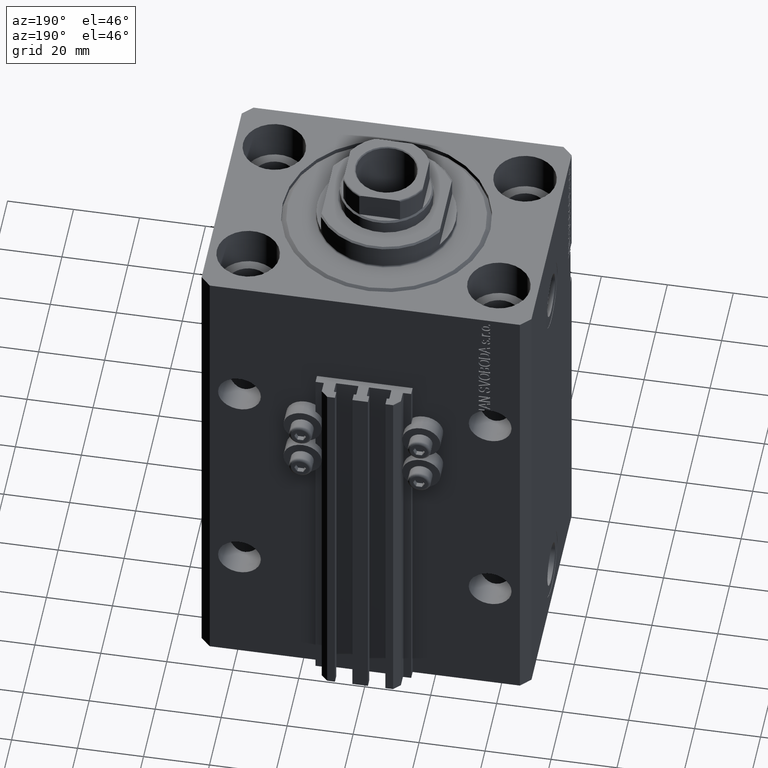
[diagram: clean part render]
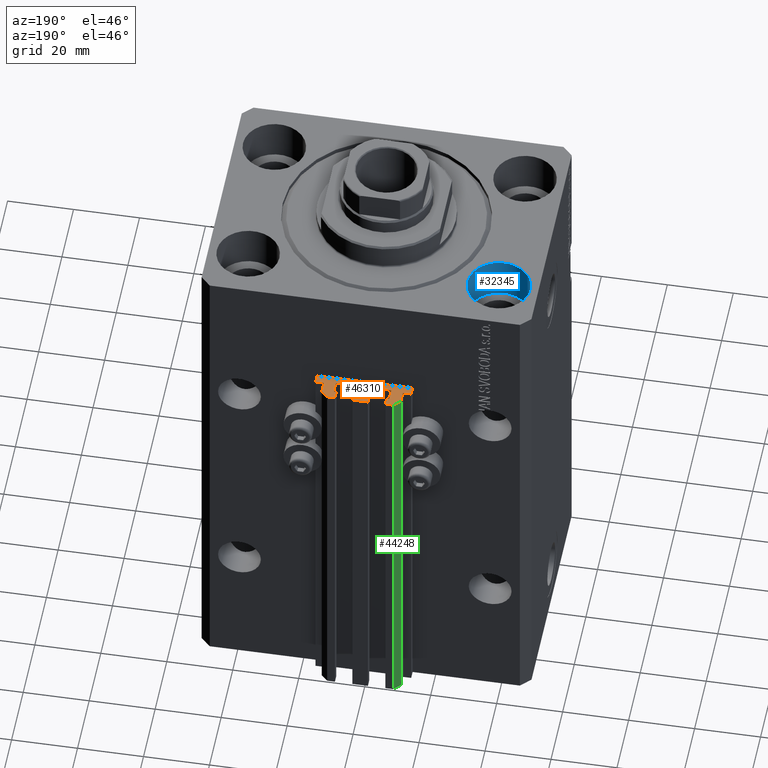
[diagram: same view with three faces highlighted in distinct colors, each labeled with its STEP entity id]
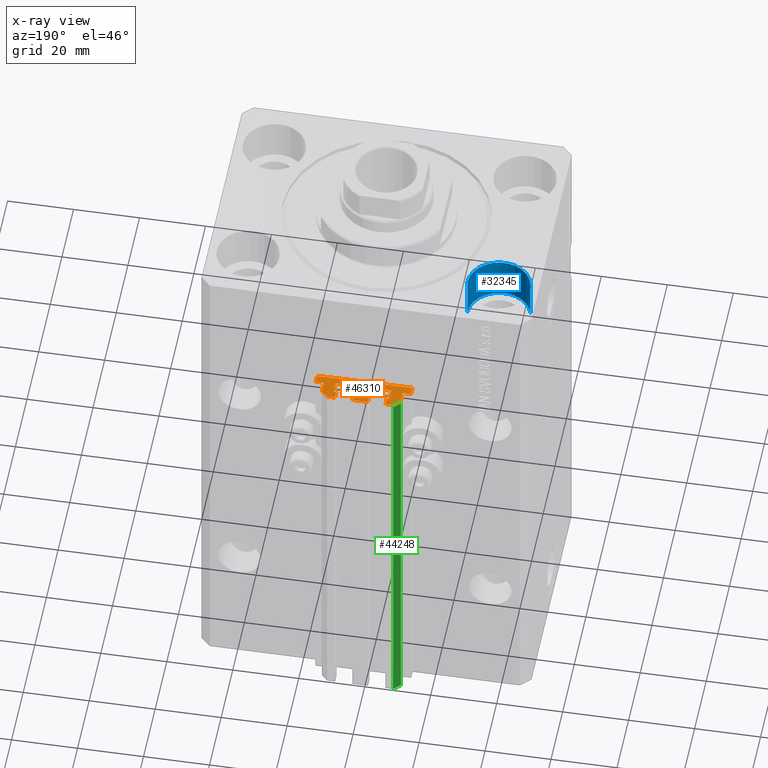
[diagram: x-ray of the same camera — body ghosted, the three highlighted faces saturated]
A machine part, auxiliary view with three faces highlighted in distinct colors.
The next image is the same camera in x-ray (body ghosted, the three faces saturated) — at least one of them is partly hidden behind the body in this view.
Their STEP definitions:

[orange] entity #46310 — the highlighted planar face has unit normal (0, 0, 1).
#24 = DIRECTION ( 'NONE',  ( 1.000000000000000000, 0.000000000000000000, 0.000000000000000000 ) ) ;
#56 = CARTESIAN_POINT ( 'NONE',  ( -14.50000000000000000, 39.99999999999999289, -33.00000000000000000 ) ) ;
#68 = ORIENTED_EDGE ( 'NONE', *, *, #24298, .T. ) ;
#148 = CARTESIAN_POINT ( 'NONE',  ( 12.00000000000000000, 43.50000000000002132, -33.00000000000000000 ) ) ;
#251 = CARTESIAN_POINT ( 'NONE',  ( 12.00000000000000000, 43.50000000000002132, -33.00000000000000000 ) ) ;
#435 = LINE ( 'NONE', #3359, #10320 ) ;
#467 = ORIENTED_EDGE ( 'NONE', *, *, #36859, .T. ) ;
#588 = VERTEX_POINT ( 'NONE', #3208 ) ;
#849 = CIRCLE ( 'NONE', #35069, 0.1999999999999998723 ) ;
#1845 = EDGE_CURVE ( 'NONE', #3474, #8685, #30923, .T. ) ;
#2583 = EDGE_CURVE ( 'NONE', #44900, #36249, #18470, .T. ) ;
#2861 = CARTESIAN_POINT ( 'NONE',  ( -2.350000000000003197, 43.10000000000000853, -33.00000000000000000 ) ) ;
#2949 = VECTOR ( 'NONE', #37934, 1000.000000000000000 ) ;
#3009 = ORIENTED_EDGE ( 'NONE', *, *, #37012, .F. ) ;
#3193 = CARTESIAN_POINT ( 'NONE',  ( -12.20000000000000107, 39.99999999999998579, -33.00000000000000000 ) ) ;
#3208 = CARTESIAN_POINT ( 'NONE',  ( -2.350000000000003642, 45.50000000000000711, -33.00000000000000000 ) ) ;
#3233 = AXIS2_PLACEMENT_3D ( 'NONE', #37066, #18297, #24 ) ;
#3250 = VERTEX_POINT ( 'NONE', #39840 ) ;
#3275 = EDGE_LOOP ( 'NONE', ( #42648, #44871, #467, #12449, #10863, #68, #22457, #19434, #16439, #35631, #9361, #19989, #10838, #9105, #27028, #10081, #17294, #44394, #33990, #3009, #17116, #31369, #5089, #15490, #27808, #46724, #31295, #3901, #4737, #5184, #45193, #43600, #7581, #20670, #13408, #35400 ) ) ;
#3359 = CARTESIAN_POINT ( 'NONE',  ( 14.49999999999999645, 40.00000000000002132, -33.00000000000000000 ) ) ;
#3417 = CARTESIAN_POINT ( 'NONE',  ( 8.400000000000000355, 42.90000000000001990, -33.00000000000000000 ) ) ;
#3474 = VERTEX_POINT ( 'NONE', #47010 ) ;
#3768 = VERTEX_POINT ( 'NONE', #5082 ) ;
#3850 = CIRCLE ( 'NONE', #21731, 0.1999999999999987899 ) ;
#3901 = ORIENTED_EDGE ( 'NONE', *, *, #16786, .T. ) ;
#3927 = DIRECTION ( 'NONE',  ( 0.000000000000000000, 1.000000000000000000, 0.000000000000000000 ) ) ;
#4011 = EDGE_CURVE ( 'NONE', #21726, #8282, #47764, .T. ) ;
#4041 = CARTESIAN_POINT ( 'NONE',  ( -7.650000000000002132, 45.49999999999999289, -33.00000000000000000 ) ) ;
#4066 = DIRECTION ( 'NONE',  ( 1.000000000000000000, 0.000000000000000000, 0.000000000000000000 ) ) ;
#4345 = CARTESIAN_POINT ( 'NONE',  ( -12.00000000000000000, 43.49999999999998579, -33.00000000000000000 ) ) ;
#4467 = CARTESIAN_POINT ( 'NONE',  ( 1.800000000000000933, 43.10000000000001563, -33.00000000000000000 ) ) ;
#4737 = ORIENTED_EDGE ( 'NONE', *, *, #25682, .F. ) ;
#5082 = CARTESIAN_POINT ( 'NONE',  ( -12.20000000000000107, 39.99999999999998579, -33.00000000000000000 ) ) ;
#5089 = ORIENTED_EDGE ( 'NONE', *, *, #47730, .F. ) ;
#5132 = DIRECTION ( 'NONE',  ( 0.000000000000000000, -1.000000000000000000, 0.000000000000000000 ) ) ;
#5184 = ORIENTED_EDGE ( 'NONE', *, *, #47688, .T. ) ;
#5371 = DIRECTION ( 'NONE',  ( 1.000000000000000000, 0.000000000000000000, 0.000000000000000000 ) ) ;
#5806 = VECTOR ( 'NONE', #12151, 1000.000000000000000 ) ;
#5907 = VERTEX_POINT ( 'NONE', #29199 ) ;
#5977 = CARTESIAN_POINT ( 'NONE',  ( -12.20000000000000107, 40.19999999999998863, -33.00000000000000000 ) ) ;
#6334 = VERTEX_POINT ( 'NONE', #9660 ) ;
#6397 = DIRECTION ( 'NONE',  ( 1.807003620809174632E-16, -1.000000000000000000, 0.000000000000000000 ) ) ;
#6408 = DIRECTION ( 'NONE',  ( 1.000000000000000000, 0.000000000000000000, 0.000000000000000000 ) ) ;
#6430 = VECTOR ( 'NONE', #43622, 1000.000000000000000 ) ;
#6604 = EDGE_CURVE ( 'NONE', #27602, #29760, #29734, .T. ) ;
#6610 = VERTEX_POINT ( 'NONE', #32914 ) ;
#6695 = DIRECTION ( 'NONE',  ( 1.000000000000000000, 0.000000000000000000, 0.000000000000000000 ) ) ;
#6862 = LINE ( 'NONE', #14192, #23971 ) ;
#7552 = DIRECTION ( 'NONE',  ( -0.7071067811865474617, 0.7071067811865474617, 0.000000000000000000 ) ) ;
#7581 = ORIENTED_EDGE ( 'NONE', *, *, #37332, .T. ) ;
#8242 = PLANE ( 'NONE',  #32868 ) ;
#8282 = VERTEX_POINT ( 'NONE', #15254 ) ;
#8296 = LINE ( 'NONE', #19514, #31867 ) ;
#8523 = VECTOR ( 'NONE', #24881, 1000.000000000000000 ) ;
#8533 = DIRECTION ( 'NONE',  ( 0.000000000000000000, 0.000000000000000000, 1.000000000000000000 ) ) ;
#8685 = VERTEX_POINT ( 'NONE', #40100 ) ;
#8699 = VERTEX_POINT ( 'NONE', #31827 ) ;
#8939 = VECTOR ( 'NONE', #5132, 1000.000000000000000 ) ;
#9047 = CARTESIAN_POINT ( 'NONE',  ( -8.199999999999997513, 42.89999999999999147, -33.00000000000000000 ) ) ;
#9076 = DIRECTION ( 'NONE',  ( 1.000000000000000000, -1.261617073437681085E-14, 0.000000000000000000 ) ) ;
#9105 = ORIENTED_EDGE ( 'NONE', *, *, #15396, .T. ) ;
#9299 = DIRECTION ( 'NONE',  ( -1.000000000000000000, 0.000000000000000000, 0.000000000000000000 ) ) ;
#9361 = ORIENTED_EDGE ( 'NONE', *, *, #11055, .F. ) ;
#9660 = CARTESIAN_POINT ( 'NONE',  ( -10.00000000000000000, 45.49999999999999289, -33.00000000000000000 ) ) ;
#10081 = ORIENTED_EDGE ( 'NONE', *, *, #27782, .T. ) ;
#10320 = VECTOR ( 'NONE', #26035, 1000.000000000000000 ) ;
#10838 = ORIENTED_EDGE ( 'NONE', *, *, #44119, .F. ) ;
#10863 = ORIENTED_EDGE ( 'NONE', *, *, #45041, .F. ) ;
#10961 = LINE ( 'NONE', #3417, #43580 ) ;
#10970 = CARTESIAN_POINT ( 'NONE',  ( 8.200000000000001066, 42.90000000000001990, -33.00000000000000000 ) ) ;
#11029 = VERTEX_POINT ( 'NONE', #28378 ) ;
#11055 = EDGE_CURVE ( 'NONE', #8699, #29137, #39978, .T. ) ;
#11660 = CARTESIAN_POINT ( 'NONE',  ( 12.20000000000000107, 40.20000000000002416, -33.00000000000000000 ) ) ;
#11718 = DIRECTION ( 'NONE',  ( 1.000000000000000000, 0.000000000000000000, 0.000000000000000000 ) ) ;
#11743 = EDGE_CURVE ( 'NONE', #23527, #17492, #40655, .T. ) ;
#11896 = DIRECTION ( 'NONE',  ( 1.000000000000000000, 0.000000000000000000, -0.000000000000000000 ) ) ;
#12014 = LINE ( 'NONE', #20050, #31492 ) ;
#12151 = DIRECTION ( 'NONE',  ( 1.000000000000000000, 2.392722035830078972E-16, 0.000000000000000000 ) ) ;
#12252 = DIRECTION ( 'NONE',  ( -1.084202172485506406E-15, 1.000000000000000000, 0.000000000000000000 ) ) ;
#12449 = ORIENTED_EDGE ( 'NONE', *, *, #48042, .T. ) ;
#12555 = AXIS2_PLACEMENT_3D ( 'NONE', #25100, #20721, #5371 ) ;
#12712 = CARTESIAN_POINT ( 'NONE',  ( -1.800000000000000933, 39.50000000000000000, -33.00000000000000000 ) ) ;
#13408 = ORIENTED_EDGE ( 'NONE', *, *, #33038, .F. ) ;
#13416 = LINE ( 'NONE', #35843, #8523 ) ;
#13547 = AXIS2_PLACEMENT_3D ( 'NONE', #45475, #19160, #26727 ) ;
#13551 = DIRECTION ( 'NONE',  ( 0.000000000000000000, 1.000000000000000000, 0.000000000000000000 ) ) ;
#13594 = VERTEX_POINT ( 'NONE', #39667 ) ;
#13670 = DIRECTION ( 'NONE',  ( 0.000000000000000000, 0.000000000000000000, 1.000000000000000000 ) ) ;
#13976 = EDGE_CURVE ( 'NONE', #3768, #13594, #17334, .T. ) ;
#14192 = CARTESIAN_POINT ( 'NONE',  ( -2.350000000000003642, 45.50000000000000711, -33.00000000000000000 ) ) ;
#14766 = VERTEX_POINT ( 'NONE', #33104 ) ;
#14776 = CARTESIAN_POINT ( 'NONE',  ( -1.600000000000000533, 42.90000000000000568, -33.00000000000000000 ) ) ;
#14851 = CARTESIAN_POINT ( 'NONE',  ( -10.00000000000000000, 45.49999999999999289, -33.00000000000000000 ) ) ;
#15254 = CARTESIAN_POINT ( 'NONE',  ( -1.600000000000000755, 39.69999999999999574, -33.00000000000000000 ) ) ;
#15396 = EDGE_CURVE ( 'NONE', #45010, #21693, #34727, .T. ) ;
#15490 = ORIENTED_EDGE ( 'NONE', *, *, #28673, .T. ) ;
#15974 = CARTESIAN_POINT ( 'NONE',  ( 8.199999999999999289, 39.50000000000000711, -33.00000000000000000 ) ) ;
#16439 = ORIENTED_EDGE ( 'NONE', *, *, #17100, .T. ) ;
#16734 = LINE ( 'NONE', #46685, #26946 ) ;
#16786 = EDGE_CURVE ( 'NONE', #22753, #25602, #12014, .T. ) ;
#16876 = EDGE_CURVE ( 'NONE', #18826, #3250, #34619, .T. ) ;
#17100 = EDGE_CURVE ( 'NONE', #5907, #14766, #38523, .T. ) ;
#17116 = ORIENTED_EDGE ( 'NONE', *, *, #24494, .T. ) ;
#17135 = CIRCLE ( 'NONE', #43598, 0.2000000000000005107 ) ;
#17294 = ORIENTED_EDGE ( 'NONE', *, *, #16876, .F. ) ;
#17319 = CARTESIAN_POINT ( 'NONE',  ( -8.199999999999999289, 43.09999999999999432, -33.00000000000000000 ) ) ;
#17334 = LINE ( 'NONE', #3193, #39289 ) ;
#17344 = DIRECTION ( 'NONE',  ( 1.000000000000000000, 0.000000000000000000, 0.000000000000000000 ) ) ;
#17424 = DIRECTION ( 'NONE',  ( 0.000000000000000000, 0.000000000000000000, 1.000000000000000000 ) ) ;
#17492 = VERTEX_POINT ( 'NONE', #41705 ) ;
#17588 = DIRECTION ( 'NONE',  ( 0.000000000000000000, 0.000000000000000000, 1.000000000000000000 ) ) ;
#17615 = LINE ( 'NONE', #32003, #28786 ) ;
#17710 = DIRECTION ( 'NONE',  ( 1.000000000000000000, 1.261617073437673039E-14, 0.000000000000000000 ) ) ;
#17770 = VERTEX_POINT ( 'NONE', #33860 ) ;
#18297 = DIRECTION ( 'NONE',  ( 0.000000000000000000, 0.000000000000000000, 1.000000000000000000 ) ) ;
#18470 = LINE ( 'NONE', #29693, #40751 ) ;
#18826 = VERTEX_POINT ( 'NONE', #31597 ) ;
#18896 = DIRECTION ( 'NONE',  ( -1.000000000000000000, 0.000000000000000000, 0.000000000000000000 ) ) ;
#18988 = DIRECTION ( 'NONE',  ( -0.7071067811865460184, -0.7071067811865490160, 0.000000000000000000 ) ) ;
#19019 = VERTEX_POINT ( 'NONE', #32782 ) ;
#19160 = DIRECTION ( 'NONE',  ( 0.000000000000000000, 0.000000000000000000, 1.000000000000000000 ) ) ;
#19434 = ORIENTED_EDGE ( 'NONE', *, *, #37300, .T. ) ;
#19514 = CARTESIAN_POINT ( 'NONE',  ( 1.600000000000000533, 39.69999999999999574, -33.00000000000000000 ) ) ;
#19963 = EDGE_CURVE ( 'NONE', #25789, #45536, #16734, .T. ) ;
#19989 = ORIENTED_EDGE ( 'NONE', *, *, #38239, .T. ) ;
#20050 = CARTESIAN_POINT ( 'NONE',  ( -8.399999999999996803, 39.69999999999999574, -33.00000000000000000 ) ) ;
#20533 = VECTOR ( 'NONE', #37002, 1000.000000000000000 ) ;
#20670 = ORIENTED_EDGE ( 'NONE', *, *, #11743, .T. ) ;
#20721 = DIRECTION ( 'NONE',  ( 0.000000000000000000, 0.000000000000000000, 1.000000000000000000 ) ) ;
#20987 = CARTESIAN_POINT ( 'NONE',  ( -1.800000000000000933, 42.90000000000000568, -33.00000000000000000 ) ) ;
#21360 = AXIS2_PLACEMENT_3D ( 'NONE', #42930, #17588, #17344 ) ;
#21624 = CARTESIAN_POINT ( 'NONE',  ( -1.800000000000000933, 43.10000000000001563, -33.00000000000000000 ) ) ;
#21693 = VERTEX_POINT ( 'NONE', #22619 ) ;
#21726 = VERTEX_POINT ( 'NONE', #29442 ) ;
#21731 = AXIS2_PLACEMENT_3D ( 'NONE', #45096, #8533, #11718 ) ;
#22307 = CARTESIAN_POINT ( 'NONE',  ( 2.349999999999999645, 45.50000000000000711, -33.00000000000000000 ) ) ;
#22457 = ORIENTED_EDGE ( 'NONE', *, *, #6604, .T. ) ;
#22619 = CARTESIAN_POINT ( 'NONE',  ( 1.800000000000000933, 39.50000000000000000, -33.00000000000000000 ) ) ;
#22668 = DIRECTION ( 'NONE',  ( -5.421010862427508365E-16, -1.000000000000000000, 0.000000000000000000 ) ) ;
#22698 = CARTESIAN_POINT ( 'NONE',  ( 1.600000000000001421, 39.69999999999999574, -33.00000000000000000 ) ) ;
#22753 = VERTEX_POINT ( 'NONE', #27013 ) ;
#23358 = FACE_OUTER_BOUND ( 'NONE', #3275, .T. ) ;
#23527 = VERTEX_POINT ( 'NONE', #32226 ) ;
#23559 = CIRCLE ( 'NONE', #29775, 0.2000000000000031197 ) ;
#23712 = LINE ( 'NONE', #4467, #35975 ) ;
#23892 = VERTEX_POINT ( 'NONE', #21624 ) ;
#23894 = CARTESIAN_POINT ( 'NONE',  ( 7.649999999999998579, 45.50000000000002842, -33.00000000000000000 ) ) ;
#23919 = DIRECTION ( 'NONE',  ( 0.000000000000000000, 0.000000000000000000, 1.000000000000000000 ) ) ;
#23971 = VECTOR ( 'NONE', #6397, 1000.000000000000000 ) ;
#24298 = EDGE_CURVE ( 'NONE', #38533, #27602, #45418, .T. ) ;
#24312 = CARTESIAN_POINT ( 'NONE',  ( -7.650000000000002132, 45.49999999999999289, -33.00000000000000000 ) ) ;
#24494 = EDGE_CURVE ( 'NONE', #588, #37374, #6862, .T. ) ;
#24881 = DIRECTION ( 'NONE',  ( -1.000000000000000000, 0.000000000000000000, 0.000000000000000000 ) ) ;
#25010 = LINE ( 'NONE', #40115, #35239 ) ;
#25100 = CARTESIAN_POINT ( 'NONE',  ( 8.199999999999999289, 39.70000000000000284, -33.00000000000000000 ) ) ;
#25498 = EDGE_CURVE ( 'NONE', #13594, #3474, #33442, .T. ) ;
#25602 = VERTEX_POINT ( 'NONE', #38550 ) ;
#25646 = VECTOR ( 'NONE', #18988, 1000.000000000000227 ) ;
#25682 = EDGE_CURVE ( 'NONE', #6610, #25602, #47362, .T. ) ;
#25789 = VERTEX_POINT ( 'NONE', #32183 ) ;
#26035 = DIRECTION ( 'NONE',  ( -1.000000000000000000, 0.000000000000000000, 0.000000000000000000 ) ) ;
#26190 = CARTESIAN_POINT ( 'NONE',  ( 12.00000000000000178, 40.20000000000002416, -33.00000000000000000 ) ) ;
#26542 = DIRECTION ( 'NONE',  ( 0.000000000000000000, 0.000000000000000000, 1.000000000000000000 ) ) ;
#26727 = DIRECTION ( 'NONE',  ( 1.000000000000000000, 0.000000000000000000, 0.000000000000000000 ) ) ;
#26946 = VECTOR ( 'NONE', #13551, 1000.000000000000000 ) ;
#27013 = CARTESIAN_POINT ( 'NONE',  ( -8.399999999999996803, 39.69999999999999574, -33.00000000000000000 ) ) ;
#27028 = ORIENTED_EDGE ( 'NONE', *, *, #39295, .F. ) ;
#27220 = CARTESIAN_POINT ( 'NONE',  ( 9.999999999999998224, 45.50000000000002842, -33.00000000000000000 ) ) ;
#27602 = VERTEX_POINT ( 'NONE', #148 ) ;
#27616 = EDGE_CURVE ( 'NONE', #45536, #6334, #37432, .T. ) ;
#27641 = DIRECTION ( 'NONE',  ( 0.000000000000000000, 1.000000000000000000, 0.000000000000000000 ) ) ;
#27782 = EDGE_CURVE ( 'NONE', #31573, #3250, #8296, .T. ) ;
#27808 = ORIENTED_EDGE ( 'NONE', *, *, #4011, .F. ) ;
#28120 = CIRCLE ( 'NONE', #3233, 0.2000000000000022593 ) ;
#28378 = CARTESIAN_POINT ( 'NONE',  ( -1.599999999999997868, 42.90000000000000568, -33.00000000000000000 ) ) ;
#28617 = DIRECTION ( 'NONE',  ( 1.000000000000000000, 0.000000000000000000, 0.000000000000000000 ) ) ;
#28673 = EDGE_CURVE ( 'NONE', #11029, #8282, #33303, .T. ) ;
#28708 = AXIS2_PLACEMENT_3D ( 'NONE', #9047, #23919, #38785 ) ;
#28786 = VECTOR ( 'NONE', #6408, 1000.000000000000000 ) ;
#29047 = EDGE_CURVE ( 'NONE', #14766, #29137, #25010, .T. ) ;
#29137 = VERTEX_POINT ( 'NONE', #35109 ) ;
#29199 = CARTESIAN_POINT ( 'NONE',  ( 7.649999999999998579, 45.50000000000002842, -33.00000000000000000 ) ) ;
#29442 = CARTESIAN_POINT ( 'NONE',  ( -1.800000000000000933, 39.50000000000000000, -33.00000000000000000 ) ) ;
#29693 = CARTESIAN_POINT ( 'NONE',  ( 2.349999999999999645, 43.10000000000000853, -33.00000000000000000 ) ) ;
#29734 = LINE ( 'NONE', #251, #43174 ) ;
#29760 = VERTEX_POINT ( 'NONE', #27220 ) ;
#29775 = AXIS2_PLACEMENT_3D ( 'NONE', #20987, #13670, #43859 ) ;
#29785 = DIRECTION ( 'NONE',  ( 0.000000000000000000, -1.000000000000000000, 0.000000000000000000 ) ) ;
#29894 = VERTEX_POINT ( 'NONE', #39855 ) ;
#30693 = VECTOR ( 'NONE', #31555, 1000.000000000000000 ) ;
#30923 = LINE ( 'NONE', #42123, #5806 ) ;
#31295 = ORIENTED_EDGE ( 'NONE', *, *, #31506, .F. ) ;
#31369 = ORIENTED_EDGE ( 'NONE', *, *, #46476, .T. ) ;
#31492 = VECTOR ( 'NONE', #12252, 1000.000000000000000 ) ;
#31506 = EDGE_CURVE ( 'NONE', #22753, #19019, #3850, .T. ) ;
#31555 = DIRECTION ( 'NONE',  ( -1.000000000000000000, -1.084202172485504828E-15, 0.000000000000000000 ) ) ;
#31573 = VERTEX_POINT ( 'NONE', #22698 ) ;
#31597 = CARTESIAN_POINT ( 'NONE',  ( 1.800000000000000933, 43.10000000000001563, -33.00000000000000000 ) ) ;
#31730 = VECTOR ( 'NONE', #37638, 1000.000000000000000 ) ;
#31767 = CARTESIAN_POINT ( 'NONE',  ( 14.49999999999999645, 37.50000000000000711, -33.00000000000000000 ) ) ;
#31827 = CARTESIAN_POINT ( 'NONE',  ( 8.400000000000003908, 42.90000000000001990, -33.00000000000000000 ) ) ;
#31867 = VECTOR ( 'NONE', #3927, 1000.000000000000000 ) ;
#32003 = CARTESIAN_POINT ( 'NONE',  ( -2.350000000000003642, 45.50000000000000711, -33.00000000000000000 ) ) ;
#32183 = CARTESIAN_POINT ( 'NONE',  ( -7.650000000000002132, 43.09999999999999432, -33.00000000000000000 ) ) ;
#32226 = CARTESIAN_POINT ( 'NONE',  ( -12.00000000000000000, 43.49999999999998579, -33.00000000000000000 ) ) ;
#32556 = VECTOR ( 'NONE', #29785, 1000.000000000000000 ) ;
#32782 = CARTESIAN_POINT ( 'NONE',  ( -8.199999999999997513, 39.50000000000000000, -33.00000000000000000 ) ) ;
#32868 = AXIS2_PLACEMENT_3D ( 'NONE', #11660, #26542, #11896 ) ;
#32914 = CARTESIAN_POINT ( 'NONE',  ( -8.199999999999999289, 43.09999999999999432, -33.00000000000000000 ) ) ;
#33038 = EDGE_CURVE ( 'NONE', #3768, #17492, #17135, .T. ) ;
#33104 = CARTESIAN_POINT ( 'NONE',  ( 7.649999999999998579, 43.10000000000002984, -33.00000000000000000 ) ) ;
#33144 = LINE ( 'NONE', #14851, #25646 ) ;
#33303 = LINE ( 'NONE', #14776, #2949 ) ;
#33442 = LINE ( 'NONE', #56, #32556 ) ;
#33860 = CARTESIAN_POINT ( 'NONE',  ( 8.400000000000000355, 39.70000000000000995, -33.00000000000000000 ) ) ;
#33869 = CARTESIAN_POINT ( 'NONE',  ( -2.350000000000003197, 43.10000000000000853, -33.00000000000000000 ) ) ;
#33990 = ORIENTED_EDGE ( 'NONE', *, *, #2583, .T. ) ;
#34408 = VECTOR ( 'NONE', #17710, 1000.000000000000000 ) ;
#34619 = CIRCLE ( 'NONE', #21360, 0.2000000000000033418 ) ;
#34727 = LINE ( 'NONE', #15974, #30693 ) ;
#35004 = VECTOR ( 'NONE', #27641, 1000.000000000000000 ) ;
#35069 = AXIS2_PLACEMENT_3D ( 'NONE', #37458, #44754, #4066 ) ;
#35109 = CARTESIAN_POINT ( 'NONE',  ( 8.200000000000001066, 43.10000000000002984, -33.00000000000000000 ) ) ;
#35239 = VECTOR ( 'NONE', #35976, 1000.000000000000000 ) ;
#35400 = ORIENTED_EDGE ( 'NONE', *, *, #13976, .T. ) ;
#35631 = ORIENTED_EDGE ( 'NONE', *, *, #29047, .T. ) ;
#35843 = CARTESIAN_POINT ( 'NONE',  ( 9.999999999999998224, 45.50000000000002842, -33.00000000000000000 ) ) ;
#35975 = VECTOR ( 'NONE', #9076, 1000.000000000000000 ) ;
#35976 = DIRECTION ( 'NONE',  ( 1.000000000000000000, 0.000000000000000000, 0.000000000000000000 ) ) ;
#36249 = VERTEX_POINT ( 'NONE', #22307 ) ;
#36859 = EDGE_CURVE ( 'NONE', #8685, #29894, #42725, .T. ) ;
#36958 = LINE ( 'NONE', #2861, #34408 ) ;
#37002 = DIRECTION ( 'NONE',  ( 0.000000000000000000, -1.000000000000000000, 0.000000000000000000 ) ) ;
#37012 = EDGE_CURVE ( 'NONE', #588, #36249, #17615, .T. ) ;
#37066 = CARTESIAN_POINT ( 'NONE',  ( 12.20000000000000107, 40.20000000000002416, -33.00000000000000000 ) ) ;
#37300 = EDGE_CURVE ( 'NONE', #29760, #5907, #13416, .T. ) ;
#37332 = EDGE_CURVE ( 'NONE', #6334, #23527, #33144, .T. ) ;
#37374 = VERTEX_POINT ( 'NONE', #33869 ) ;
#37432 = LINE ( 'NONE', #4041, #45062 ) ;
#37458 = CARTESIAN_POINT ( 'NONE',  ( 1.800000000000000933, 39.69999999999999574, -33.00000000000000000 ) ) ;
#37638 = DIRECTION ( 'NONE',  ( -5.256737805990328981E-16, 1.000000000000000000, 0.000000000000000000 ) ) ;
#37934 = DIRECTION ( 'NONE',  ( -6.776263578034385456E-17, -1.000000000000000000, 0.000000000000000000 ) ) ;
#38017 = EDGE_CURVE ( 'NONE', #21726, #19019, #45619, .T. ) ;
#38239 = EDGE_CURVE ( 'NONE', #8699, #17770, #10961, .T. ) ;
#38523 = LINE ( 'NONE', #23894, #8939 ) ;
#38533 = VERTEX_POINT ( 'NONE', #44271 ) ;
#38550 = CARTESIAN_POINT ( 'NONE',  ( -8.400000000000000355, 42.89999999999999147, -33.00000000000000000 ) ) ;
#38785 = DIRECTION ( 'NONE',  ( 1.000000000000000000, 0.000000000000000000, 0.000000000000000000 ) ) ;
#38945 = VECTOR ( 'NONE', #9299, 1000.000000000000000 ) ;
#39221 = AXIS2_PLACEMENT_3D ( 'NONE', #10970, #41429, #28617 ) ;
#39289 = VECTOR ( 'NONE', #44106, 1000.000000000000000 ) ;
#39295 = EDGE_CURVE ( 'NONE', #31573, #21693, #849, .T. ) ;
#39667 = CARTESIAN_POINT ( 'NONE',  ( -14.50000000000000000, 39.99999999999999289, -33.00000000000000000 ) ) ;
#39773 = CARTESIAN_POINT ( 'NONE',  ( 2.349999999999999645, 43.10000000000000853, -33.00000000000000000 ) ) ;
#39840 = CARTESIAN_POINT ( 'NONE',  ( 1.600000000000000533, 42.90000000000000568, -33.00000000000000000 ) ) ;
#39855 = CARTESIAN_POINT ( 'NONE',  ( 14.49999999999999645, 40.00000000000002132, -33.00000000000000000 ) ) ;
#39978 = CIRCLE ( 'NONE', #39221, 0.2000000000000040079 ) ;
#40100 = CARTESIAN_POINT ( 'NONE',  ( 14.49999999999999645, 37.50000000000000711, -33.00000000000000000 ) ) ;
#40115 = CARTESIAN_POINT ( 'NONE',  ( 7.649999999999998579, 43.10000000000002984, -33.00000000000000000 ) ) ;
#40655 = LINE ( 'NONE', #4345, #20533 ) ;
#40751 = VECTOR ( 'NONE', #44537, 1000.000000000000000 ) ;
#41429 = DIRECTION ( 'NONE',  ( 0.000000000000000000, 0.000000000000000000, 1.000000000000000000 ) ) ;
#41705 = CARTESIAN_POINT ( 'NONE',  ( -12.00000000000000000, 40.19999999999998863, -33.00000000000000000 ) ) ;
#42123 = CARTESIAN_POINT ( 'NONE',  ( -14.50000000000000000, 37.50000000000000000, -33.00000000000000000 ) ) ;
#42648 = ORIENTED_EDGE ( 'NONE', *, *, #25498, .T. ) ;
#42725 = LINE ( 'NONE', #31767, #35004 ) ;
#42930 = CARTESIAN_POINT ( 'NONE',  ( 1.800000000000000933, 42.90000000000000568, -33.00000000000000000 ) ) ;
#43033 = EDGE_CURVE ( 'NONE', #18826, #44900, #23712, .T. ) ;
#43147 = LINE ( 'NONE', #17319, #6430 ) ;
#43174 = VECTOR ( 'NONE', #7552, 1000.000000000000114 ) ;
#43580 = VECTOR ( 'NONE', #22668, 1000.000000000000000 ) ;
#43598 = AXIS2_PLACEMENT_3D ( 'NONE', #5977, #17424, #6695 ) ;
#43600 = ORIENTED_EDGE ( 'NONE', *, *, #27616, .T. ) ;
#43622 = DIRECTION ( 'NONE',  ( 1.000000000000000000, 0.000000000000000000, 0.000000000000000000 ) ) ;
#43859 = DIRECTION ( 'NONE',  ( 1.000000000000000000, 0.000000000000000000, 0.000000000000000000 ) ) ;
#44106 = DIRECTION ( 'NONE',  ( -1.000000000000000000, 3.016910393003142859E-15, 0.000000000000000000 ) ) ;
#44119 = EDGE_CURVE ( 'NONE', #45010, #17770, #46775, .T. ) ;
#44271 = CARTESIAN_POINT ( 'NONE',  ( 11.99999999999999822, 40.20000000000002416, -33.00000000000000000 ) ) ;
#44394 = ORIENTED_EDGE ( 'NONE', *, *, #43033, .T. ) ;
#44537 = DIRECTION ( 'NONE',  ( 0.000000000000000000, 1.000000000000000000, 0.000000000000000000 ) ) ;
#44754 = DIRECTION ( 'NONE',  ( 0.000000000000000000, 0.000000000000000000, 1.000000000000000000 ) ) ;
#44871 = ORIENTED_EDGE ( 'NONE', *, *, #1845, .T. ) ;
#44900 = VERTEX_POINT ( 'NONE', #39773 ) ;
#45010 = VERTEX_POINT ( 'NONE', #47780 ) ;
#45041 = EDGE_CURVE ( 'NONE', #38533, #47591, #28120, .T. ) ;
#45062 = VECTOR ( 'NONE', #18896, 1000.000000000000000 ) ;
#45096 = CARTESIAN_POINT ( 'NONE',  ( -8.199999999999997513, 39.69999999999999574, -33.00000000000000000 ) ) ;
#45193 = ORIENTED_EDGE ( 'NONE', *, *, #19963, .T. ) ;
#45418 = LINE ( 'NONE', #26190, #31730 ) ;
#45437 = CARTESIAN_POINT ( 'NONE',  ( 12.20000000000000107, 40.00000000000002132, -33.00000000000000000 ) ) ;
#45475 = CARTESIAN_POINT ( 'NONE',  ( -1.800000000000000933, 39.69999999999999574, -33.00000000000000000 ) ) ;
#45536 = VERTEX_POINT ( 'NONE', #24312 ) ;
#45619 = LINE ( 'NONE', #12712, #38945 ) ;
#46310 = ADVANCED_FACE ( 'NONE', ( #23358 ), #8242, .T. ) ;
#46476 = EDGE_CURVE ( 'NONE', #37374, #23892, #36958, .T. ) ;
#46685 = CARTESIAN_POINT ( 'NONE',  ( -7.650000000000002132, 43.09999999999999432, -33.00000000000000000 ) ) ;
#46724 = ORIENTED_EDGE ( 'NONE', *, *, #38017, .T. ) ;
#46775 = CIRCLE ( 'NONE', #12555, 0.1999999999999987899 ) ;
#47010 = CARTESIAN_POINT ( 'NONE',  ( -14.50000000000000000, 37.50000000000000000, -33.00000000000000000 ) ) ;
#47362 = CIRCLE ( 'NONE', #28708, 0.2000000000000005107 ) ;
#47591 = VERTEX_POINT ( 'NONE', #45437 ) ;
#47688 = EDGE_CURVE ( 'NONE', #6610, #25789, #43147, .T. ) ;
#47730 = EDGE_CURVE ( 'NONE', #11029, #23892, #23559, .T. ) ;
#47764 = CIRCLE ( 'NONE', #13547, 0.1999999999999994282 ) ;
#47780 = CARTESIAN_POINT ( 'NONE',  ( 8.199999999999999289, 39.50000000000000711, -33.00000000000000000 ) ) ;
#48042 = EDGE_CURVE ( 'NONE', #29894, #47591, #435, .T. ) ;

[blue] entity #32345 — the highlighted cylindrical surface (edge-blend (fillet) strip) has radius 9.5 mm, axis along (0, 0, 1).
#1449 = VERTEX_POINT ( 'NONE', #26134 ) ;
#3087 = AXIS2_PLACEMENT_3D ( 'NONE', #7403, #41279, #22031 ) ;
#6178 = CIRCLE ( 'NONE', #46628, 9.500000000000001776 ) ;
#6487 = CARTESIAN_POINT ( 'NONE',  ( -28.50000000000000355, 22.50000000000000000, -13.00000000000000000 ) ) ;
#7181 = VECTOR ( 'NONE', #37026, 1000.000000000000000 ) ;
#7403 = CARTESIAN_POINT ( 'NONE',  ( -38.00000000000000711, 22.50000000000000000, -13.00000000000000000 ) ) ;
#7930 = DIRECTION ( 'NONE',  ( 0.000000000000000000, 0.000000000000000000, 1.000000000000000000 ) ) ;
#8960 = ORIENTED_EDGE ( 'NONE', *, *, #31185, .F. ) ;
#9478 = ORIENTED_EDGE ( 'NONE', *, *, #47276, .F. ) ;
#9973 = LINE ( 'NONE', #16571, #21948 ) ;
#15148 = VERTEX_POINT ( 'NONE', #6487 ) ;
#15571 = LINE ( 'NONE', #22402, #7181 ) ;
#16571 = CARTESIAN_POINT ( 'NONE',  ( -47.50000000000000711, 22.50000000000000000, -13.00000000000000000 ) ) ;
#16756 = EDGE_CURVE ( 'NONE', #17144, #1449, #28405, .T. ) ;
#17144 = VERTEX_POINT ( 'NONE', #34852 ) ;
#20633 = ORIENTED_EDGE ( 'NONE', *, *, #45246, .T. ) ;
#21529 = VERTEX_POINT ( 'NONE', #44338 ) ;
#21845 = CARTESIAN_POINT ( 'NONE',  ( -38.00000000000000711, 22.50000000000000000, -13.00000000000000000 ) ) ;
#21948 = VECTOR ( 'NONE', #35573, 1000.000000000000000 ) ;
#22031 = DIRECTION ( 'NONE',  ( 1.000000000000000000, 0.000000000000000000, 0.000000000000000000 ) ) ;
#22402 = CARTESIAN_POINT ( 'NONE',  ( -28.50000000000000355, 22.50000000000000000, -13.00000000000000000 ) ) ;
#26134 = CARTESIAN_POINT ( 'NONE',  ( -28.50000000000000355, 22.50000000000000000, 0.000000000000000000 ) ) ;
#28060 = EDGE_LOOP ( 'NONE', ( #8960, #20633, #39182, #9478 ) ) ;
#28405 = CIRCLE ( 'NONE', #43160, 9.500000000000001776 ) ;
#29878 = DIRECTION ( 'NONE',  ( 1.000000000000000000, 0.000000000000000000, 0.000000000000000000 ) ) ;
#31185 = EDGE_CURVE ( 'NONE', #21529, #15148, #6178, .T. ) ;
#32345 = ADVANCED_FACE ( 'NONE', ( #44674 ), #37385, .F. ) ;
#34852 = CARTESIAN_POINT ( 'NONE',  ( -47.50000000000000711, 22.50000000000000000, 0.000000000000000000 ) ) ;
#35399 = DIRECTION ( 'NONE',  ( 0.000000000000000000, 0.000000000000000000, 1.000000000000000000 ) ) ;
#35573 = DIRECTION ( 'NONE',  ( -0.000000000000000000, -0.000000000000000000, 1.000000000000000000 ) ) ;
#37026 = DIRECTION ( 'NONE',  ( -0.000000000000000000, -0.000000000000000000, 1.000000000000000000 ) ) ;
#37385 = CYLINDRICAL_SURFACE ( 'NONE', #3087, 9.500000000000001776 ) ;
#39182 = ORIENTED_EDGE ( 'NONE', *, *, #16756, .T. ) ;
#41279 = DIRECTION ( 'NONE',  ( -0.000000000000000000, -0.000000000000000000, 1.000000000000000000 ) ) ;
#41748 = CARTESIAN_POINT ( 'NONE',  ( -38.00000000000000711, 22.50000000000000000, 0.000000000000000000 ) ) ;
#43160 = AXIS2_PLACEMENT_3D ( 'NONE', #41748, #35399, #46359 ) ;
#44338 = CARTESIAN_POINT ( 'NONE',  ( -47.50000000000000711, 22.50000000000000000, -13.00000000000000000 ) ) ;
#44674 = FACE_OUTER_BOUND ( 'NONE', #28060, .T. ) ;
#45246 = EDGE_CURVE ( 'NONE', #21529, #17144, #9973, .T. ) ;
#46359 = DIRECTION ( 'NONE',  ( 1.000000000000000000, 0.000000000000000000, 0.000000000000000000 ) ) ;
#46628 = AXIS2_PLACEMENT_3D ( 'NONE', #21845, #7930, #29878 ) ;
#47276 = EDGE_CURVE ( 'NONE', #15148, #1449, #15571, .T. ) ;

[green] entity #44248 — the highlighted planar face has unit normal (-0.7071, 0.7071, 0).
#765 = EDGE_CURVE ( 'NONE', #7929, #23527, #47440, .T. ) ;
#948 = CARTESIAN_POINT ( 'NONE',  ( -10.00000000000000000, 45.49999999999999289, -155.0000000000000000 ) ) ;
#1675 = AXIS2_PLACEMENT_3D ( 'NONE', #948, #19214, #41635 ) ;
#5000 = ORIENTED_EDGE ( 'NONE', *, *, #37332, .F. ) ;
#5193 = LINE ( 'NONE', #34915, #42098 ) ;
#6334 = VERTEX_POINT ( 'NONE', #9660 ) ;
#7929 = VERTEX_POINT ( 'NONE', #12366 ) ;
#9593 = EDGE_LOOP ( 'NONE', ( #5000, #22468, #14468, #21433 ) ) ;
#9660 = CARTESIAN_POINT ( 'NONE',  ( -10.00000000000000000, 45.49999999999999289, -33.00000000000000000 ) ) ;
#10877 = CARTESIAN_POINT ( 'NONE',  ( -12.00000000000000000, 43.49999999999998579, -155.0000000000000000 ) ) ;
#12366 = CARTESIAN_POINT ( 'NONE',  ( -12.00000000000000000, 43.49999999999998579, -155.0000000000000000 ) ) ;
#14468 = ORIENTED_EDGE ( 'NONE', *, *, #24427, .T. ) ;
#14851 = CARTESIAN_POINT ( 'NONE',  ( -10.00000000000000000, 45.49999999999999289, -33.00000000000000000 ) ) ;
#18988 = DIRECTION ( 'NONE',  ( -0.7071067811865460184, -0.7071067811865490160, 0.000000000000000000 ) ) ;
#19214 = DIRECTION ( 'NONE',  ( -0.7071067811865490160, 0.7071067811865461294, 0.000000000000000000 ) ) ;
#19461 = PLANE ( 'NONE',  #1675 ) ;
#20783 = CARTESIAN_POINT ( 'NONE',  ( -10.00000000000000000, 45.49999999999999289, -155.0000000000000000 ) ) ;
#21433 = ORIENTED_EDGE ( 'NONE', *, *, #765, .T. ) ;
#22468 = ORIENTED_EDGE ( 'NONE', *, *, #43722, .F. ) ;
#23527 = VERTEX_POINT ( 'NONE', #32226 ) ;
#24427 = EDGE_CURVE ( 'NONE', #44982, #7929, #28106, .T. ) ;
#25646 = VECTOR ( 'NONE', #18988, 1000.000000000000227 ) ;
#26310 = VECTOR ( 'NONE', #27864, 1000.000000000000227 ) ;
#27864 = DIRECTION ( 'NONE',  ( -0.7071067811865460184, -0.7071067811865490160, 0.000000000000000000 ) ) ;
#28106 = LINE ( 'NONE', #20783, #26310 ) ;
#28349 = VECTOR ( 'NONE', #40144, 1000.000000000000000 ) ;
#32226 = CARTESIAN_POINT ( 'NONE',  ( -12.00000000000000000, 43.49999999999998579, -33.00000000000000000 ) ) ;
#33144 = LINE ( 'NONE', #14851, #25646 ) ;
#34915 = CARTESIAN_POINT ( 'NONE',  ( -10.00000000000000000, 45.49999999999999289, -155.0000000000000000 ) ) ;
#37332 = EDGE_CURVE ( 'NONE', #6334, #23527, #33144, .T. ) ;
#38101 = DIRECTION ( 'NONE',  ( 0.000000000000000000, 0.000000000000000000, 1.000000000000000000 ) ) ;
#40144 = DIRECTION ( 'NONE',  ( 0.000000000000000000, 0.000000000000000000, 1.000000000000000000 ) ) ;
#41635 = DIRECTION ( 'NONE',  ( -0.7071067811865460184, -0.7071067811865489050, 0.000000000000000000 ) ) ;
#41876 = FACE_OUTER_BOUND ( 'NONE', #9593, .T. ) ;
#42098 = VECTOR ( 'NONE', #38101, 1000.000000000000000 ) ;
#43722 = EDGE_CURVE ( 'NONE', #44982, #6334, #5193, .T. ) ;
#44248 = ADVANCED_FACE ( 'NONE', ( #41876 ), #19461, .T. ) ;
#44982 = VERTEX_POINT ( 'NONE', #47063 ) ;
#47063 = CARTESIAN_POINT ( 'NONE',  ( -10.00000000000000000, 45.49999999999999289, -155.0000000000000000 ) ) ;
#47440 = LINE ( 'NONE', #10877, #28349 ) ;